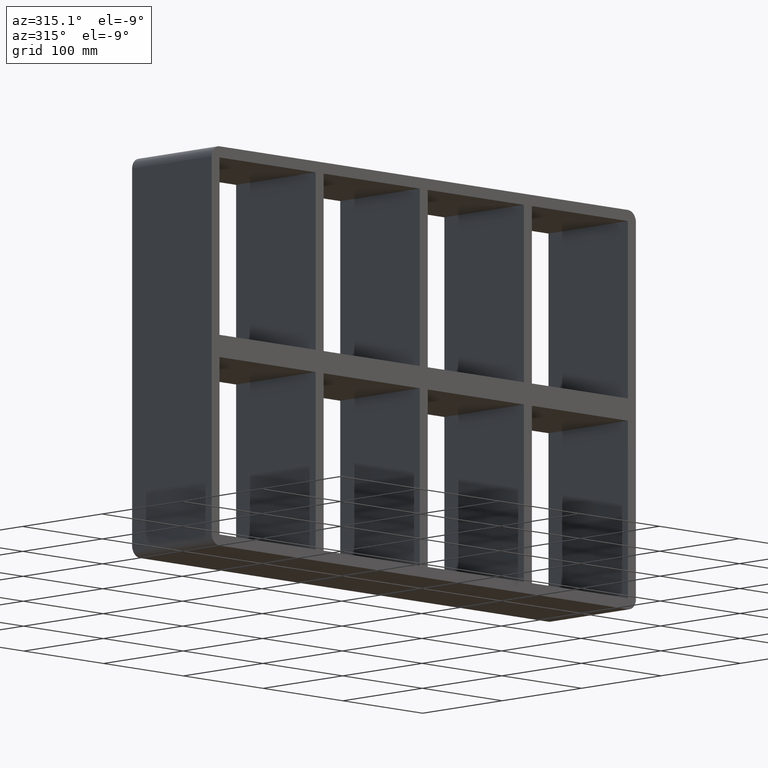
[diagram: clean part render]
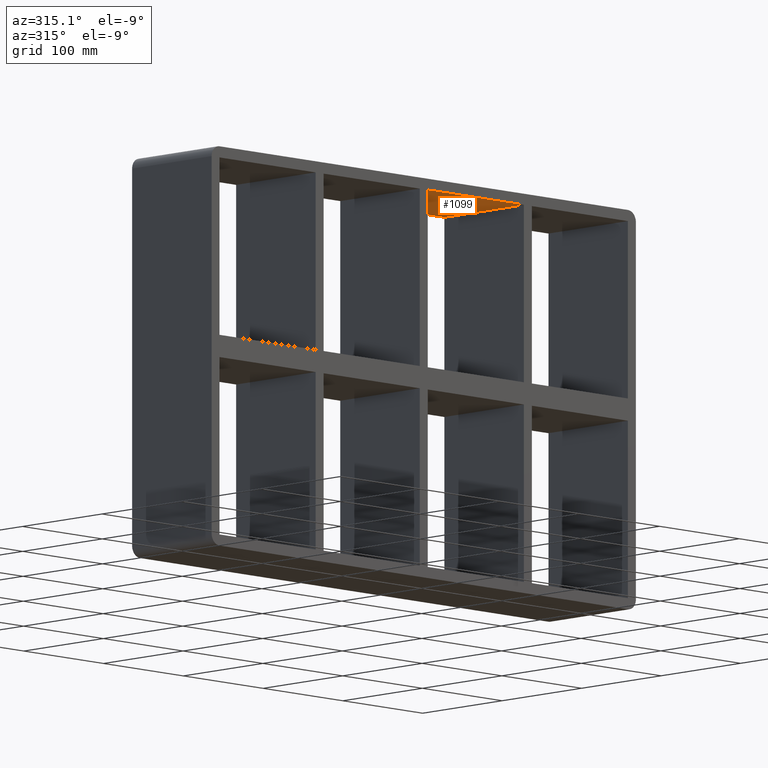
[diagram: same view with one face highlighted and labeled with its STEP entity id]
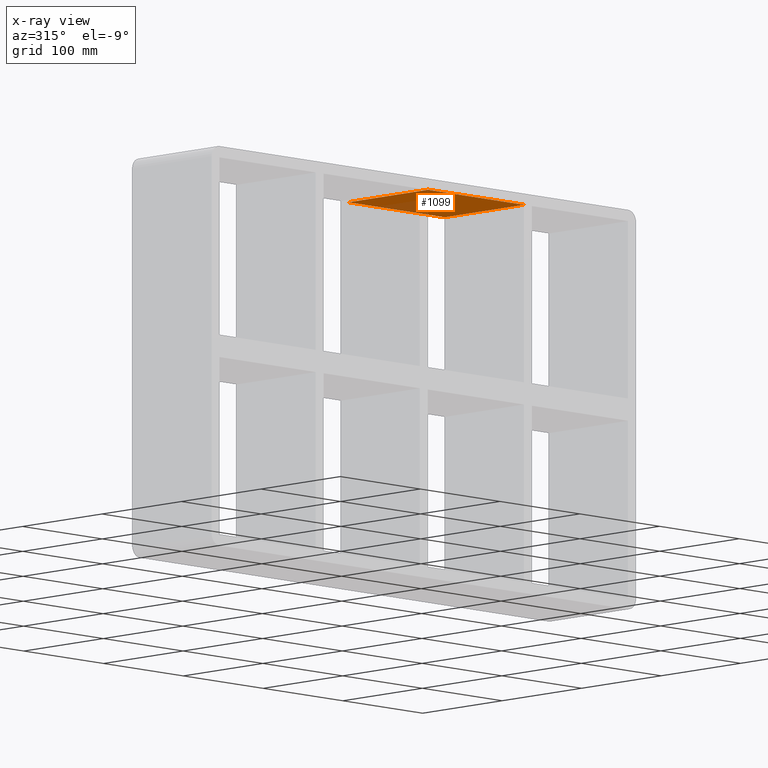
[diagram: x-ray of the same camera — body ghosted, the highlighted face saturated]
A machine part, auxiliary view. The second image highlights one B-rep face of the part: STEP entity #1099.
The next image is the same camera in x-ray: the body ghosted, the highlighted face saturated — about 16% of this face is hidden behind the body in this view.
In plain terms, the highlighted planar face has unit normal (0, 0, 1).
Its self-contained STEP definition (entity closure, byte-faithful):
#83=CARTESIAN_POINT('',(125.49999999999881,-3.0,169.50000000000003));
#84=VERTEX_POINT('',#83);
#91=CARTESIAN_POINT('',(125.49999999999881,97.0,169.50000000000003));
#92=VERTEX_POINT('',#91);
#93=CARTESIAN_POINT('',(125.49999999999881,97.0,169.50000000000003));
#94=DIRECTION('',(0.0,-1.0,0.0));
#95=VECTOR('',#94,100.0);
#96=LINE('',#93,#95);
#97=EDGE_CURVE('',#92,#84,#96,.T.);
#323=CARTESIAN_POINT('',(5.000000000007283,97.0,169.50000000000003));
#324=VERTEX_POINT('',#323);
#331=CARTESIAN_POINT('',(5.000000000007283,-3.0,169.50000000000003));
#332=VERTEX_POINT('',#331);
#333=CARTESIAN_POINT('',(5.000000000007283,-3.0,169.50000000000003));
#334=DIRECTION('',(0.0,1.0,0.0));
#335=VECTOR('',#334,100.0);
#336=LINE('',#333,#335);
#337=EDGE_CURVE('',#332,#324,#336,.T.);
#565=CARTESIAN_POINT('',(5.000000000007276,-3.0,169.50000000000003));
#566=DIRECTION('',(1.0,0.0,0.0));
#567=VECTOR('',#566,120.49999999999153);
#568=LINE('',#565,#567);
#569=EDGE_CURVE('',#332,#84,#568,.T.);
#900=CARTESIAN_POINT('',(125.49999999999881,97.0,169.50000000000003));
#901=DIRECTION('',(-1.0,0.0,0.0));
#902=VECTOR('',#901,120.49999999999153);
#903=LINE('',#900,#902);
#904=EDGE_CURVE('',#92,#324,#903,.T.);
#1088=CARTESIAN_POINT('',(-255.99999999999997,0.0,169.50000000000003));
#1089=DIRECTION('',(0.0,0.0,1.0));
#1090=DIRECTION('',(1.0,0.0,0.0));
#1091=AXIS2_PLACEMENT_3D('',#1088,#1089,#1090);
#1092=PLANE('',#1091);
#1093=ORIENTED_EDGE('',*,*,#97,.T.);
#1094=ORIENTED_EDGE('',*,*,#569,.F.);
#1095=ORIENTED_EDGE('',*,*,#337,.T.);
#1096=ORIENTED_EDGE('',*,*,#904,.F.);
#1097=EDGE_LOOP('',(#1093,#1094,#1095,#1096));
#1098=FACE_OUTER_BOUND('',#1097,.T.);
#1099=ADVANCED_FACE('',(#1098),#1092,.F.);